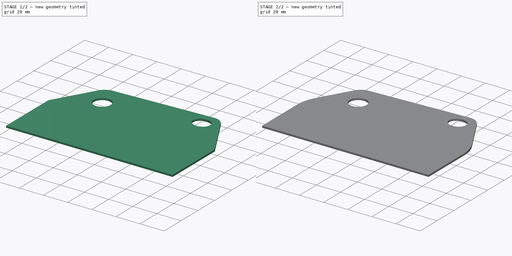
[diagram: build sequence overview — one tinted view per stage of 2, left to right]
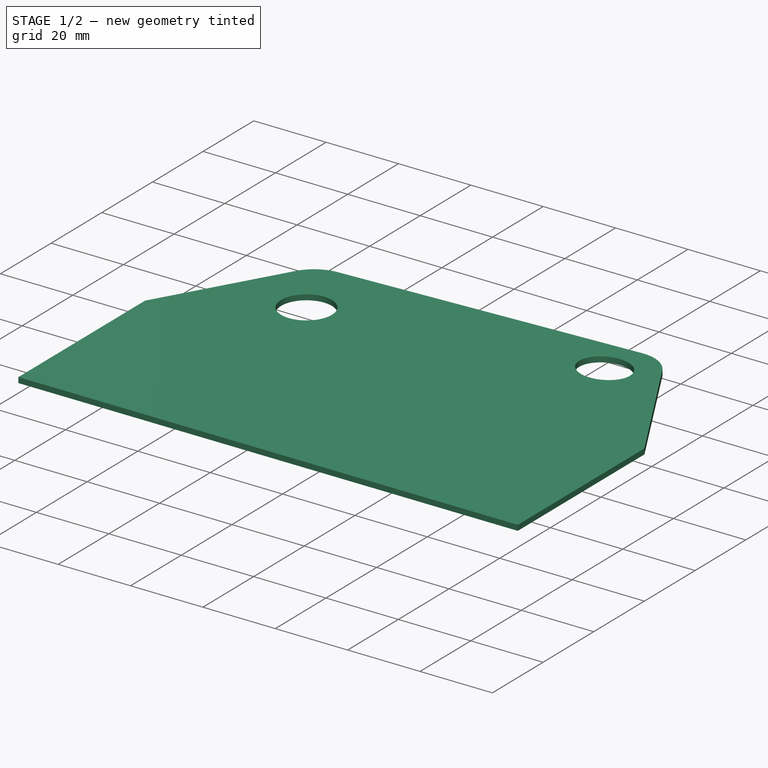
[diagram: stage 1 of 2 — iso view after this stage's code; geometry added in this stage tinted green]
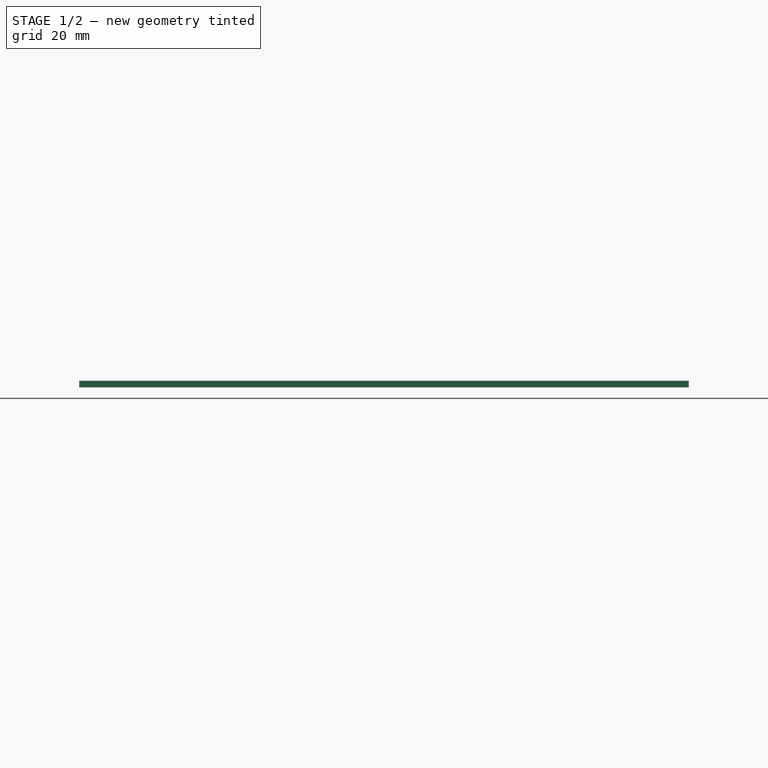
[diagram: stage 1 of 2 — front view after this stage's code; geometry added in this stage tinted green]
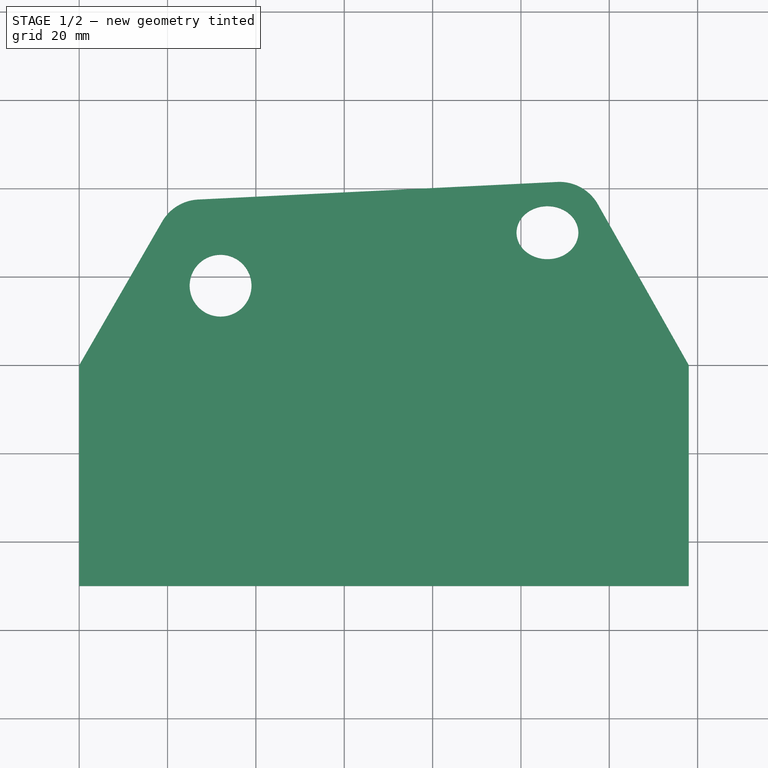
[diagram: stage 1 of 2 — top view after this stage's code; geometry added in this stage tinted green]
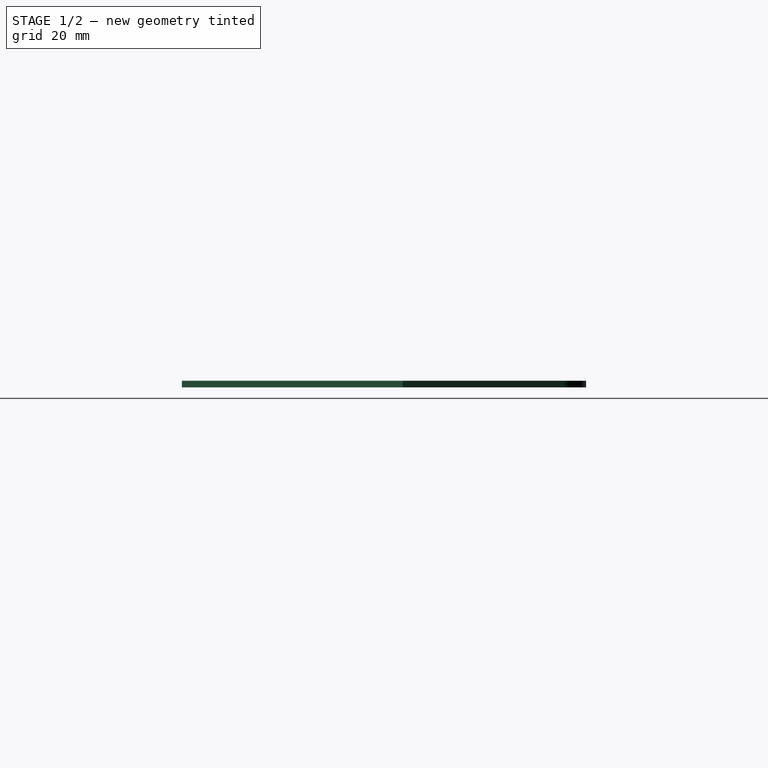
[diagram: stage 1 of 2 — right view after this stage's code; geometry added in this stage tinted green]
FCSTD DOCUMENT  (FreeCAD 0.20R29603 (Git))
Label: will car repair
License: All rights reserved
LicenseURL: http://en.wikipedia.org/wiki/All_rights_reserved
objects: PartDesign::Fillet×2, Sketcher::SketchObject×1, PartDesign::Pad×1, PartDesign::Body×1
note: 8 computed .brp shape members not serialized (recipe doc carries the construction recipe); baked Part::Feature solids carry a one-line shape summary decoded from their .brp

FEATURE [Sketcher::SketchObject] Sketch
  FullyConstrained = true
  MapMode = 5
  Support = -> [XY_Plane]
  sketch-geometry (12):
    g0: LineSegment StartX=0 StartY=0 StartZ=0 EndX=21.5 EndY=37.2391 EndZ=0
    g1: LineSegment StartX=21.5 StartY=37.2391 StartZ=0 EndX=114.389 EndY=41.7911 EndZ=0
    g2: LineSegment StartX=114.389 StartY=41.7911 StartZ=0 EndX=138 EndY=0 EndZ=0
    g3: Circle CenterX=32 CenterY=18 CenterZ=0 NormalX=0 NormalY=0 NormalZ=1 AngleXU=0 Radius=7
    g4: Ellipse CenterX=106 CenterY=30 CenterZ=0 NormalX=0 NormalY=0 NormalZ=1 MajorRadius=7 MinorRadius=6 AngleXU=0
    g5: LineSegment StartX=113 StartY=30 StartZ=0 EndX=99 EndY=30 EndZ=0
    g6: LineSegment StartX=106 StartY=36 StartZ=0 EndX=106 EndY=24 EndZ=0
    g7: GeomPoint X=109.606 Y=30 Z=0
    g8: GeomPoint X=102.394 Y=30 Z=0
    g9: LineSegment StartX=0 StartY=0 StartZ=0 EndX=0 EndY=-50 EndZ=0
    g10: LineSegment StartX=0 StartY=-50 StartZ=0 EndX=138 EndY=-50 EndZ=0
    g11: LineSegment StartX=138 StartY=-50 StartZ=0 EndX=138 EndY=0 EndZ=0
  constraints (26):
    c: Coincident(g-1,g0)
    c: Coincident(g0,g1)
    c: Coincident(g1,g2)
    c: DistanceX(g0,g2) = 138
    c: Distance(g1) = 93
    c: Distance(g2) = 48
    c: Distance(g0) = 43
    c: Diameter(g3) = 14
    c: DistanceX(g0,g3) = 32
    c: DistanceY(g0,g3) = 18
    c: InternalAlignment(g5-g8 -> g4) x4
    c: Horizontal(g5)
    c: DistanceY(g2,g4) = 30
    c: DistanceX(g4,g2) = 32
    c: DistanceY(g6,g6) = 12
    c: DistanceX(g5,g5) = 14
    c: PointOnObject(g2,g-1)
    c: Coincident(g0,g9)
    c: PointOnObject(g9,g-2)
    c: Coincident(g9,g10)
    c: Horizontal(g10)
    c: Coincident(g10,g11)
    c: Coincident(g11,g2)
    c: Vertical(g11)
    c: DistanceY(g11,g11) = 50
    c: Angle(g-1,g0) = 1.0472
FEATURE [PartDesign::Pad] Pad
  Direction = (0,0,1)
  Length = 1.5
  Length2 = 10
  Profile = -> Sketch
  ReferenceAxis = -> Sketch [N_Axis]
  Type = 0
FEATURE [PartDesign::Fillet] Fillet
  Base = -> Pad [Edge5,Edge8]
  BaseFeature = -> Pad
  Radius = 10
  SupportTransform = false
  UseAllEdges = false
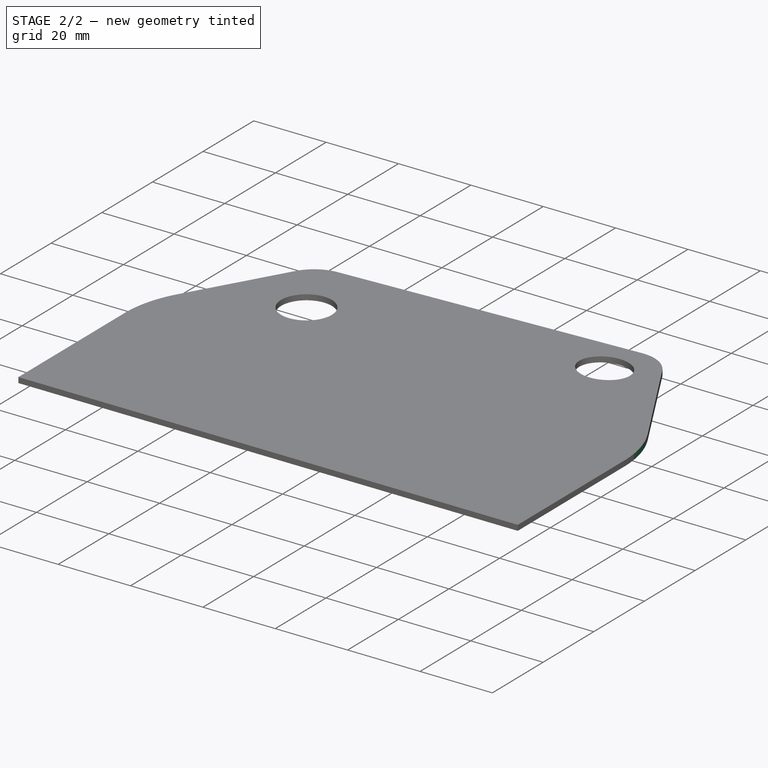
[diagram: stage 2 of 2 — iso view after this stage's code; geometry added in this stage tinted green]
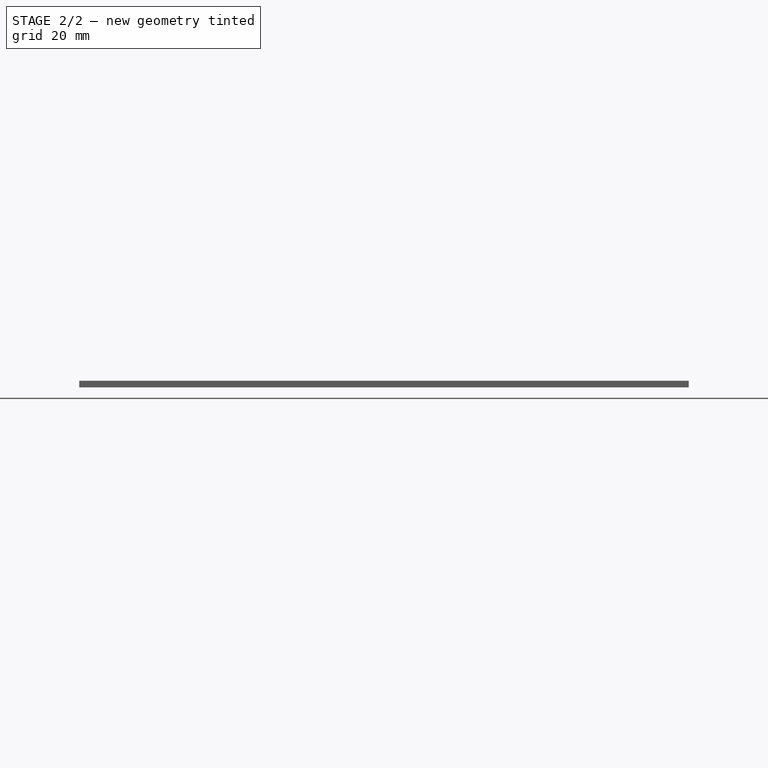
[diagram: stage 2 of 2 — front view after this stage's code; geometry added in this stage tinted green]
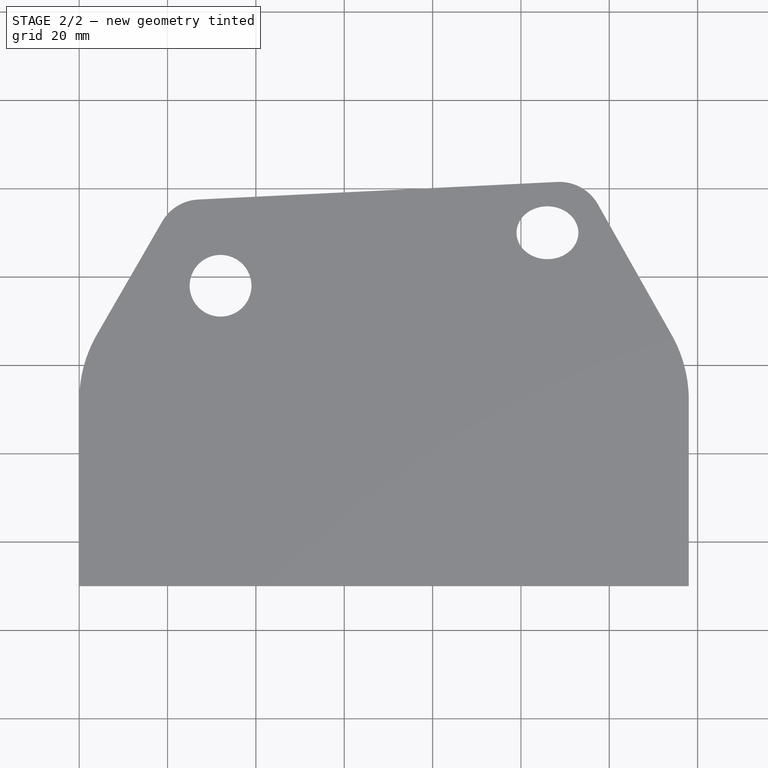
[diagram: stage 2 of 2 — top view after this stage's code; geometry added in this stage tinted green]
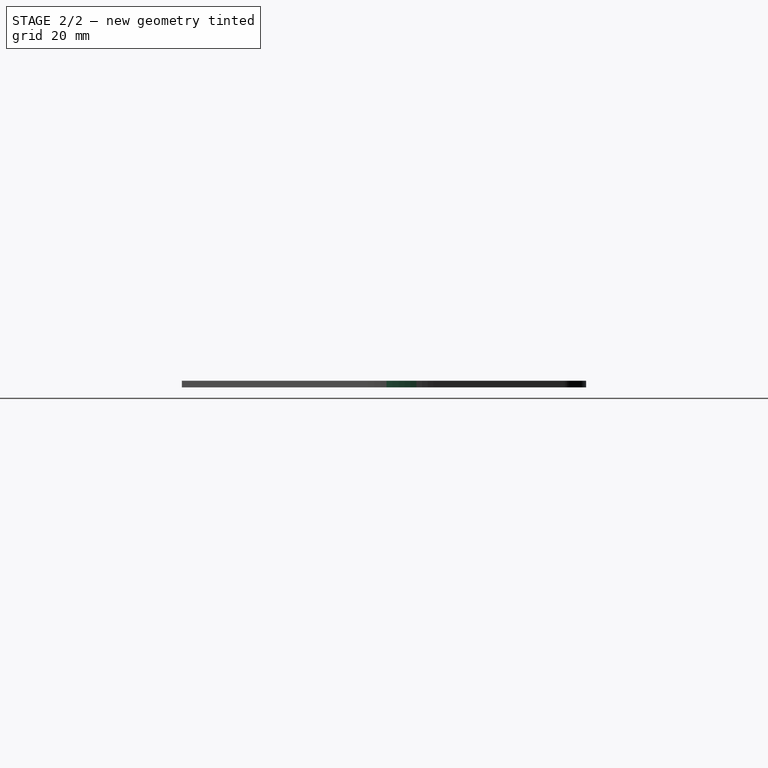
[diagram: stage 2 of 2 — right view after this stage's code; geometry added in this stage tinted green]
FEATURE [PartDesign::Fillet] Fillet001
  Base = -> Fillet [Edge28,Edge3]
  BaseFeature = -> Fillet
  Radius = 30
  SupportTransform = false
  UseAllEdges = false
FEATURE [PartDesign::Body] Body
  Group = -> [Sketch,Pad,Fillet,Fillet001]
  Origin = -> Origin
  Tip = -> Fillet001
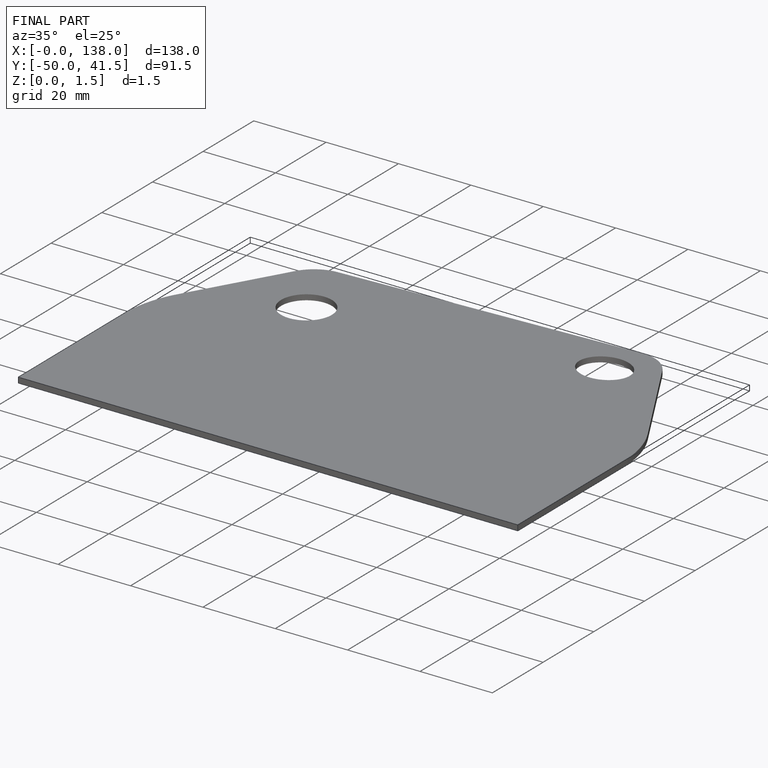
[diagram: finished part — iso view with bounding-box wireframe]
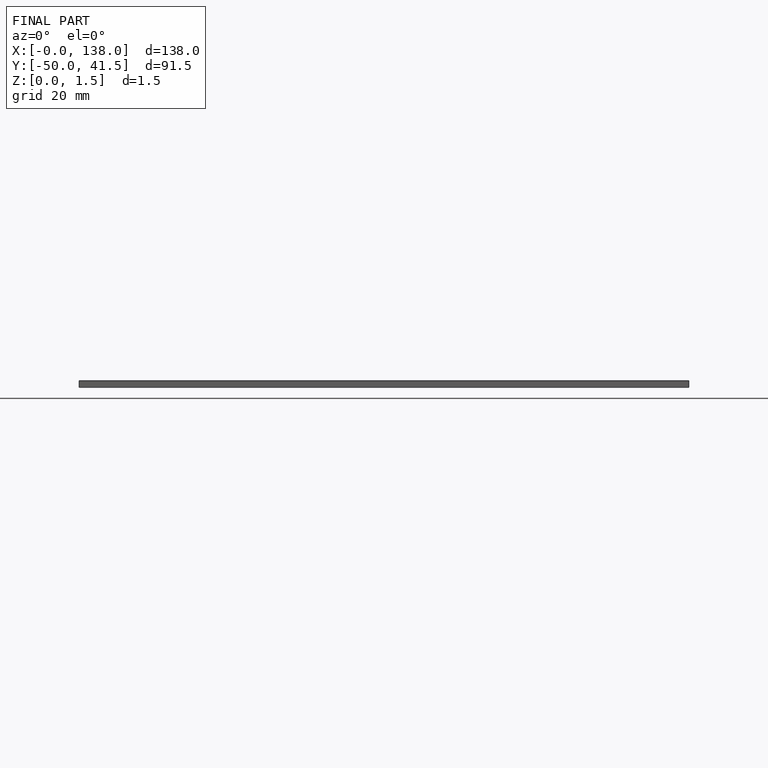
[diagram: finished part — front view with bounding-box wireframe]
